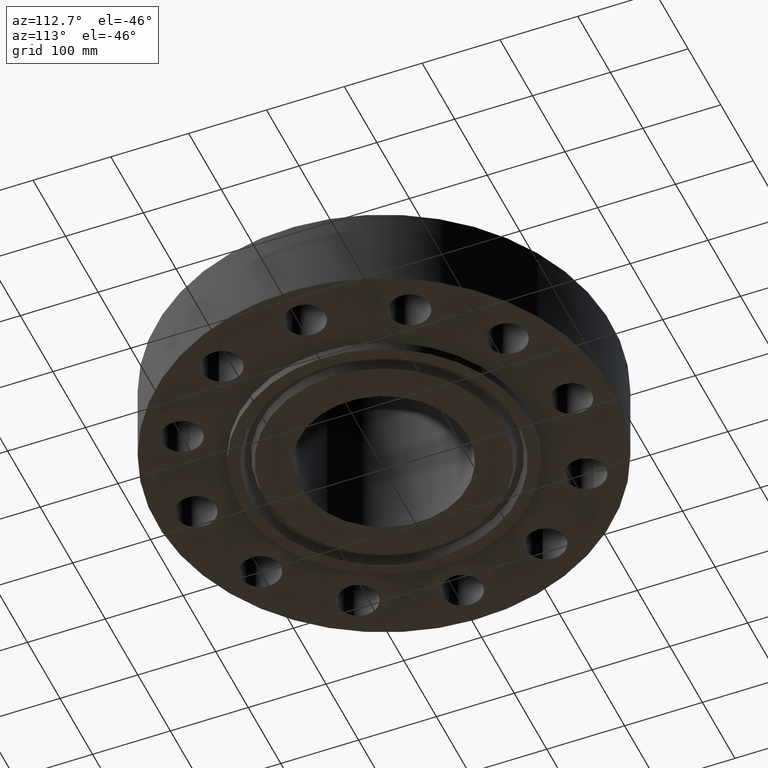
[diagram: clean part render]
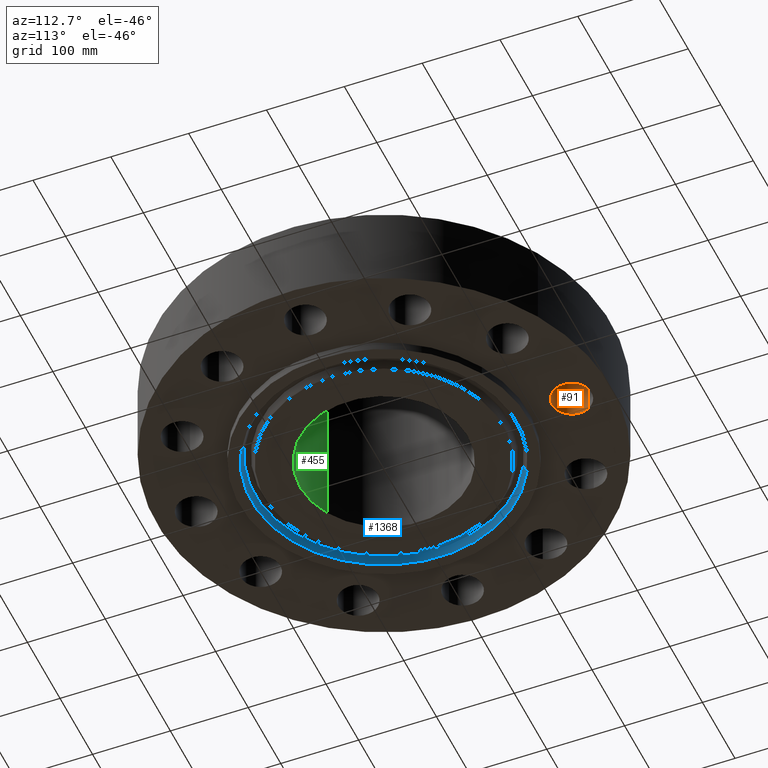
[diagram: same view with three faces highlighted in distinct colors, each labeled with its STEP entity id]
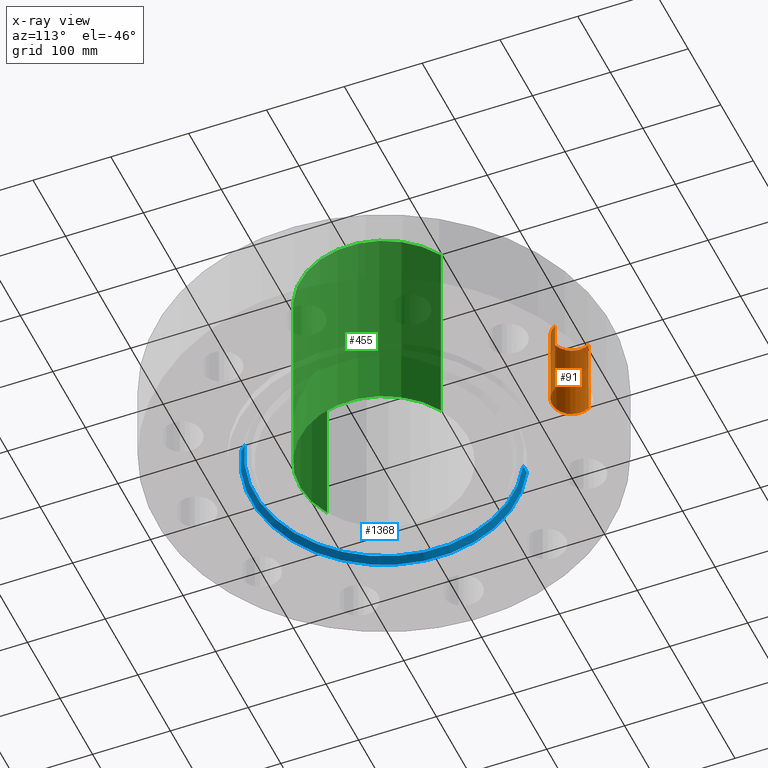
[diagram: x-ray of the same camera — body ghosted, the three highlighted faces saturated]
A machine part, auxiliary view with three faces highlighted in distinct colors.
The next image is the same camera in x-ray (body ghosted, the three faces saturated) — at least one of them is partly hidden behind the body in this view.
Their STEP definitions:

[orange] entity #91 — the highlighted cylindrical surface (edge-blend (fillet) strip) has radius 25.4 mm, axis along (0, -0, -1).
#38=AXIS2_PLACEMENT_3D('Cylinder Axis2P3D',#35,#36,#37) ;
#77=AXIS2_PLACEMENT_3D('Circle Axis2P3D',#75,#76,$) ;
#82=AXIS2_PLACEMENT_3D('Circle Axis2P3D',#80,#81,$) ;
#35=CARTESIAN_POINT('Axis2P3D Location',(0.,9.50000000004,4.24606299214)) ;
#40=CARTESIAN_POINT('Line Origine',(-0.877582561894,9.97942553864,2.12500000001)) ;
#44=CARTESIAN_POINT('Vertex',(-0.877582561894,9.97942553864,0.)) ;
#46=CARTESIAN_POINT('Vertex',(-0.877582561894,9.97942553864,4.25000000002)) ;
#53=CARTESIAN_POINT('Vertex',(0.877582561894,9.02057446143,0.)) ;
#56=CARTESIAN_POINT('Line Origine',(0.877582561894,9.02057446143,2.12500000001)) ;
#60=CARTESIAN_POINT('Vertex',(0.877582561894,9.02057446143,4.25000000002)) ;
#75=CARTESIAN_POINT('Axis2P3D Location',(0.,9.50000000004,0.)) ;
#80=CARTESIAN_POINT('Axis2P3D Location',(0.,9.50000000004,4.25000000002)) ;
#36=DIRECTION('Axis2P3D Direction',(0.,-0.,-0.0393700787402)) ;
#37=DIRECTION('Axis2P3D XDirection',(0.0345504945626,-0.0188750212049,0.)) ;
#41=DIRECTION('Vector Direction',(0.,0.,-0.0393700787402)) ;
#57=DIRECTION('Vector Direction',(0.,0.,-0.0393700787402)) ;
#76=DIRECTION('Axis2P3D Direction',(0.,-0.,-0.0393700787402)) ;
#81=DIRECTION('Axis2P3D Direction',(0.,-0.,-0.0393700787402)) ;
#42=VECTOR('Line Direction',#41,0.0393700787402) ;
#58=VECTOR('Line Direction',#57,0.0393700787402) ;
#86=ORIENTED_EDGE('',*,*,#62,.F.) ;
#87=ORIENTED_EDGE('',*,*,#79,.T.) ;
#88=ORIENTED_EDGE('',*,*,#48,.T.) ;
#89=ORIENTED_EDGE('',*,*,#84,.F.) ;
#91=ADVANCED_FACE('PartBody',(#90),#39,.F.) ;
#78=CIRCLE('generated circle',#77,1.) ;
#83=CIRCLE('generated circle',#82,1.) ;
#39=CYLINDRICAL_SURFACE('generated cylinder',#38,1.) ;
#48=EDGE_CURVE('',#45,#47,#43,.F.) ;
#62=EDGE_CURVE('',#54,#61,#59,.F.) ;
#79=EDGE_CURVE('',#54,#45,#78,.T.) ;
#84=EDGE_CURVE('',#61,#47,#83,.T.) ;
#85=EDGE_LOOP('',(#86,#87,#88,#89)) ;
#90=FACE_OUTER_BOUND('',#85,.T.) ;
#43=LINE('Line',#40,#42) ;
#59=LINE('Line',#56,#58) ;
#45=VERTEX_POINT('',#44) ;
#47=VERTEX_POINT('',#46) ;
#54=VERTEX_POINT('',#53) ;
#61=VERTEX_POINT('',#60) ;

[blue] entity #1368 — the highlighted conical surface has half-angle 23 deg.
#1267=AXIS2_PLACEMENT_3D('Circle Axis2P3D',#1265,#1266,$) ;
#1314=AXIS2_PLACEMENT_3D('Circle Axis2P3D',#1312,#1313,$) ;
#1350=AXIS2_PLACEMENT_3D('Cone Axis2P3D',#1347,#1348,#1349) ;
#1265=CARTESIAN_POINT('Axis2P3D Location',(0.,5.59482469102E-016,-0.438000000002)) ;
#1269=CARTESIAN_POINT('Vertex',(3.21358938528,-5.88243591237,-0.438000000002)) ;
#1271=CARTESIAN_POINT('Vertex',(-3.21358938528,5.88243591237,-0.438000000002)) ;
#1312=CARTESIAN_POINT('Axis2P3D Location',(0.,0.,-0.0383839389053)) ;
#1316=CARTESIAN_POINT('Vertex',(-3.13226589145,5.73357425544,-0.0383839389053)) ;
#1318=CARTESIAN_POINT('Vertex',(3.13226589145,-5.73357425544,-0.0383839389053)) ;
#1347=CARTESIAN_POINT('Axis2P3D Location',(0.,0.,-0.0383839389053)) ;
#1352=CARTESIAN_POINT('Line Origine',(-3.17292763836,5.80800508391,-0.238191969454)) ;
#1357=CARTESIAN_POINT('Line Origine',(3.17292763836,-5.80800508391,-0.238191969454)) ;
#1266=DIRECTION('Axis2P3D Direction',(0.,0.,-0.0393700787402)) ;
#1313=DIRECTION('Axis2P3D Direction',(0.,0.,0.0393700787402)) ;
#1348=DIRECTION('Axis2P3D Direction',(-0.,-0.,-0.0393700787402)) ;
#1349=DIRECTION('Axis2P3D XDirection',(-0.0188750212049,0.0345504945626,0.)) ;
#1353=DIRECTION('Vector Direction',(-0.00737505833565,0.0134999537303,-0.0362403485611)) ;
#1358=DIRECTION('Vector Direction',(0.00737505833565,-0.0134999537303,-0.0362403485611)) ;
#1354=VECTOR('Line Direction',#1353,0.0393700787402) ;
#1359=VECTOR('Line Direction',#1358,0.0393700787402) ;
#1363=ORIENTED_EDGE('',*,*,#1273,.T.) ;
#1364=ORIENTED_EDGE('',*,*,#1356,.T.) ;
#1365=ORIENTED_EDGE('',*,*,#1320,.T.) ;
#1366=ORIENTED_EDGE('',*,*,#1361,.F.) ;
#1368=ADVANCED_FACE('PartBody',(#1367),#1351,.F.) ;
#1268=CIRCLE('generated circle',#1267,6.70300000003) ;
#1315=CIRCLE('generated circle',#1314,6.53337304594) ;
#1351=CONICAL_SURFACE('Cone',#1350,6.53337304594,0.401425727959) ;
#1273=EDGE_CURVE('',#1270,#1272,#1268,.T.) ;
#1320=EDGE_CURVE('',#1317,#1319,#1315,.T.) ;
#1356=EDGE_CURVE('',#1272,#1317,#1355,.F.) ;
#1361=EDGE_CURVE('',#1270,#1319,#1360,.F.) ;
#1362=EDGE_LOOP('',(#1363,#1364,#1365,#1366)) ;
#1367=FACE_OUTER_BOUND('',#1362,.T.) ;
#1355=LINE('Line',#1352,#1354) ;
#1360=LINE('Line',#1357,#1359) ;
#1270=VERTEX_POINT('',#1269) ;
#1272=VERTEX_POINT('',#1271) ;
#1317=VERTEX_POINT('',#1316) ;
#1319=VERTEX_POINT('',#1318) ;

[green] entity #455 — the highlighted cylindrical surface (partial cylindrical patch) has radius 107.95 mm, axis along (0, 0, -1).
#374=AXIS2_PLACEMENT_3D('Circle Axis2P3D',#372,#373,$) ;
#416=AXIS2_PLACEMENT_3D('Cylinder Axis2P3D',#413,#414,#415) ;
#446=AXIS2_PLACEMENT_3D('Circle Axis2P3D',#444,#445,$) ;
#367=CARTESIAN_POINT('Vertex',(-2.03755853908,-3.72972588805,10.)) ;
#369=CARTESIAN_POINT('Vertex',(2.03755853908,3.72972588805,10.)) ;
#372=CARTESIAN_POINT('Axis2P3D Location',(0.,0.,10.)) ;
#413=CARTESIAN_POINT('Axis2P3D Location',(0.,0.,4.78100000002)) ;
#418=CARTESIAN_POINT('Line Origine',(-2.03755853908,-3.72972588805,4.78100000002)) ;
#422=CARTESIAN_POINT('Vertex',(-2.03755853908,-3.72972588805,-0.438000000002)) ;
#429=CARTESIAN_POINT('Vertex',(2.03755853908,3.72972588805,-0.438000000002)) ;
#432=CARTESIAN_POINT('Line Origine',(2.03755853908,3.72972588805,4.78100000002)) ;
#444=CARTESIAN_POINT('Axis2P3D Location',(0.,0.,-0.438000000002)) ;
#373=DIRECTION('Axis2P3D Direction',(0.,0.,-0.0393700787402)) ;
#414=DIRECTION('Axis2P3D Direction',(0.,0.,-0.0393700787402)) ;
#415=DIRECTION('Axis2P3D XDirection',(0.0188750212049,0.0345504945626,0.)) ;
#419=DIRECTION('Vector Direction',(0.,0.,-0.0393700787402)) ;
#433=DIRECTION('Vector Direction',(0.,0.,-0.0393700787402)) ;
#445=DIRECTION('Axis2P3D Direction',(0.,0.,-0.0393700787402)) ;
#420=VECTOR('Line Direction',#419,0.0393700787402) ;
#434=VECTOR('Line Direction',#433,0.0393700787402) ;
#450=ORIENTED_EDGE('',*,*,#376,.F.) ;
#451=ORIENTED_EDGE('',*,*,#436,.T.) ;
#452=ORIENTED_EDGE('',*,*,#448,.T.) ;
#453=ORIENTED_EDGE('',*,*,#424,.F.) ;
#455=ADVANCED_FACE('PartBody',(#454),#417,.F.) ;
#375=CIRCLE('generated circle',#374,4.25000000002) ;
#447=CIRCLE('generated circle',#446,4.25000000002) ;
#417=CYLINDRICAL_SURFACE('generated cylinder',#416,4.25000000002) ;
#376=EDGE_CURVE('',#370,#368,#375,.T.) ;
#424=EDGE_CURVE('',#368,#423,#421,.T.) ;
#436=EDGE_CURVE('',#370,#430,#435,.T.) ;
#448=EDGE_CURVE('',#430,#423,#447,.T.) ;
#449=EDGE_LOOP('',(#450,#451,#452,#453)) ;
#454=FACE_OUTER_BOUND('',#449,.T.) ;
#421=LINE('Line',#418,#420) ;
#435=LINE('Line',#432,#434) ;
#368=VERTEX_POINT('',#367) ;
#370=VERTEX_POINT('',#369) ;
#423=VERTEX_POINT('',#422) ;
#430=VERTEX_POINT('',#429) ;